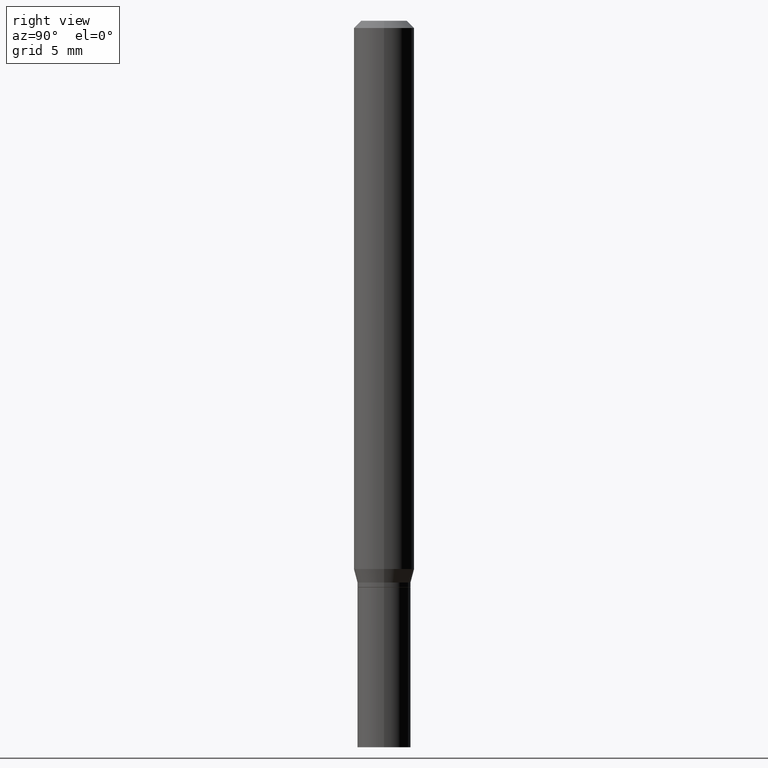
[diagram: clean part render]
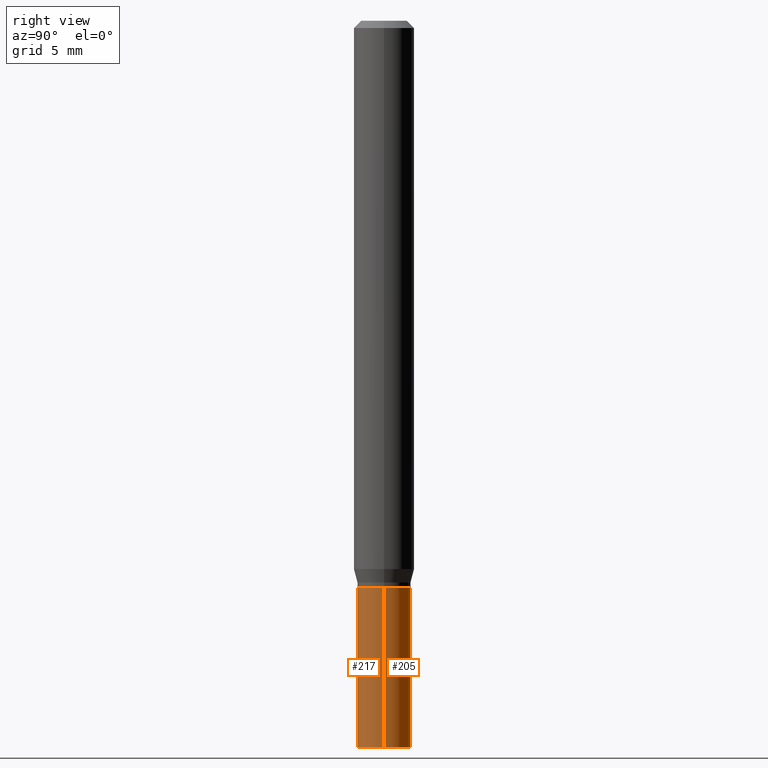
[diagram: same view with one multi-face feature highlighted, each face labeled with its STEP entity id]
A machine part, right view. The highlighted faces form ONE feature: a constant-radius fillet chain: 2 tangent blend faces with common blend radius 1.397 mm. The faces share edges in the B-rep.
Their STEP definitions:
[1] entity #205 (Cylinder):
#5 = VERTEX_POINT ( 'NONE', #393 ) ;
#20 = EDGE_CURVE ( 'NONE', #5, #462, #307, .T. ) ;
#26 = DIRECTION ( 'NONE',  ( -2.445468806185136877E-29, 3.491481338843145188E-15, 1.000000000000000000 ) ) ;
#45 = CARTESIAN_POINT ( 'NONE',  ( -0.05500000000000000028, -4.270329082687544462E-15, -1.500000000000000222 ) ) ;
#49 = DIRECTION ( 'NONE',  ( -2.445468806185136877E-29, 3.491481338843145188E-15, 1.000000000000000000 ) ) ;
#66 = VERTEX_POINT ( 'NONE', #254 ) ;
#83 = CYLINDRICAL_SURFACE ( 'NONE', #320, 0.05500000000000000028 ) ;
#114 = ORIENTED_EDGE ( 'NONE', *, *, #274, .T. ) ;
#120 = DIRECTION ( 'NONE',  ( 1.000000000000000000, -6.982962677686266711E-15, 4.876176775795935793E-29 ) ) ;
#145 = CARTESIAN_POINT ( 'NONE',  ( 2.861198503236610065E-29, -4.085033166446480067E-15, -1.170000000000000151 ) ) ;
#146 = AXIS2_PLACEMENT_3D ( 'NONE', #145, #437, #431 ) ;
#150 = CARTESIAN_POINT ( 'NONE',  ( 0.05500000000000000028, -3.840629472727446888E-16, 2.681897226687764826E-30 ) ) ;
#156 = DIRECTION ( 'NONE',  ( -2.445468806185136597E-29, 3.491481338843145583E-15, 1.000000000000000000 ) ) ;
#168 = EDGE_CURVE ( 'NONE', #66, #5, #302, .T. ) ;
#192 = CARTESIAN_POINT ( 'NONE',  ( 3.668203209277704895E-29, -5.237222008264718177E-15, -1.500000000000000222 ) ) ;
#199 = LINE ( 'NONE', #234, #383 ) ;
#205 = ADVANCED_FACE ( 'NONE', ( #224 ), #83, .T. ) ;
#224 = FACE_OUTER_BOUND ( 'NONE', #310, .T. ) ;
#234 = CARTESIAN_POINT ( 'NONE',  ( -0.05500000000000000028, 3.907985046680551042E-16, -2.705414299640198362E-30 ) ) ;
#244 = VERTEX_POINT ( 'NONE', #45 ) ;
#254 = CARTESIAN_POINT ( 'NONE',  ( 0.05500000000000000028, -5.621284955537463161E-15, -1.500000000000000222 ) ) ;
#269 = ORIENTED_EDGE ( 'NONE', *, *, #439, .T. ) ;
#274 = EDGE_CURVE ( 'NONE', #66, #244, #382, .T. ) ;
#281 = ORIENTED_EDGE ( 'NONE', *, *, #168, .F. ) ;
#302 = LINE ( 'NONE', #150, #428 ) ;
#307 = CIRCLE ( 'NONE', #146, 0.05500000000000000028 ) ;
#310 = EDGE_LOOP ( 'NONE', ( #114, #269, #409, #281 ) ) ;
#320 = AXIS2_PLACEMENT_3D ( 'NONE', #328, #368, #120 ) ;
#328 = CARTESIAN_POINT ( 'NONE',  ( 0.000000000000000000, 0.000000000000000000, 0.000000000000000000 ) ) ;
#331 = DIRECTION ( 'NONE',  ( 1.000000000000000000, -6.982962677686262766E-15, 0.000000000000000000 ) ) ;
#368 = DIRECTION ( 'NONE',  ( -2.445468806185136597E-29, 3.491481338843145583E-15, 1.000000000000000000 ) ) ;
#382 = CIRCLE ( 'NONE', #448, 0.05500000000000000028 ) ;
#383 = VECTOR ( 'NONE', #26, 39.37007874015748143 ) ;
#393 = CARTESIAN_POINT ( 'NONE',  ( 0.05500000000000000028, -4.469096113719225052E-15, -1.170000000000000151 ) ) ;
#409 = ORIENTED_EDGE ( 'NONE', *, *, #20, .F. ) ;
#412 = CARTESIAN_POINT ( 'NONE',  ( -0.05500000000000000028, -4.270329082687544462E-15, -1.170000000000000151 ) ) ;
#428 = VECTOR ( 'NONE', #49, 39.37007874015748143 ) ;
#431 = DIRECTION ( 'NONE',  ( 1.000000000000000000, -6.982962677686262766E-15, 0.000000000000000000 ) ) ;
#437 = DIRECTION ( 'NONE',  ( -2.445468806185136597E-29, 3.491481338843145583E-15, 1.000000000000000000 ) ) ;
#439 = EDGE_CURVE ( 'NONE', #244, #462, #199, .T. ) ;
#448 = AXIS2_PLACEMENT_3D ( 'NONE', #192, #156, #331 ) ;
#462 = VERTEX_POINT ( 'NONE', #412 ) ;
[2] entity #217 (Cylinder):
#5 = VERTEX_POINT ( 'NONE', #393 ) ;
#6 = FACE_OUTER_BOUND ( 'NONE', #103, .T. ) ;
#8 = DIRECTION ( 'NONE',  ( -2.445468806185136597E-29, 3.491481338843145583E-15, 1.000000000000000000 ) ) ;
#13 = AXIS2_PLACEMENT_3D ( 'NONE', #261, #8, #403 ) ;
#26 = DIRECTION ( 'NONE',  ( -2.445468806185136877E-29, 3.491481338843145188E-15, 1.000000000000000000 ) ) ;
#45 = CARTESIAN_POINT ( 'NONE',  ( -0.05500000000000000028, -4.270329082687544462E-15, -1.500000000000000222 ) ) ;
#49 = DIRECTION ( 'NONE',  ( -2.445468806185136877E-29, 3.491481338843145188E-15, 1.000000000000000000 ) ) ;
#66 = VERTEX_POINT ( 'NONE', #254 ) ;
#86 = CIRCLE ( 'NONE', #13, 0.05500000000000000028 ) ;
#99 = ORIENTED_EDGE ( 'NONE', *, *, #355, .T. ) ;
#103 = EDGE_LOOP ( 'NONE', ( #204, #99, #313, #388 ) ) ;
#115 = DIRECTION ( 'NONE',  ( 1.000000000000000000, -6.982962677686262766E-15, 0.000000000000000000 ) ) ;
#131 = CIRCLE ( 'NONE', #374, 0.05500000000000000028 ) ;
#150 = CARTESIAN_POINT ( 'NONE',  ( 0.05500000000000000028, -3.840629472727446888E-16, 2.681897226687764826E-30 ) ) ;
#157 = CYLINDRICAL_SURFACE ( 'NONE', #265, 0.05500000000000000028 ) ;
#168 = EDGE_CURVE ( 'NONE', #66, #5, #302, .T. ) ;
#191 = EDGE_CURVE ( 'NONE', #462, #5, #131, .T. ) ;
#199 = LINE ( 'NONE', #234, #383 ) ;
#204 = ORIENTED_EDGE ( 'NONE', *, *, #439, .F. ) ;
#217 = ADVANCED_FACE ( 'NONE', ( #6 ), #157, .T. ) ;
#225 = CARTESIAN_POINT ( 'NONE',  ( 2.861198503236610065E-29, -4.085033166446480067E-15, -1.170000000000000151 ) ) ;
#234 = CARTESIAN_POINT ( 'NONE',  ( -0.05500000000000000028, 3.907985046680551042E-16, -2.705414299640198362E-30 ) ) ;
#244 = VERTEX_POINT ( 'NONE', #45 ) ;
#254 = CARTESIAN_POINT ( 'NONE',  ( 0.05500000000000000028, -5.621284955537463161E-15, -1.500000000000000222 ) ) ;
#261 = CARTESIAN_POINT ( 'NONE',  ( 3.668203209277704895E-29, -5.237222008264718177E-15, -1.500000000000000222 ) ) ;
#264 = DIRECTION ( 'NONE',  ( -2.445468806185136597E-29, 3.491481338843145583E-15, 1.000000000000000000 ) ) ;
#265 = AXIS2_PLACEMENT_3D ( 'NONE', #295, #264, #267 ) ;
#267 = DIRECTION ( 'NONE',  ( 1.000000000000000000, -6.982962677686266711E-15, 4.876176775795935793E-29 ) ) ;
#295 = CARTESIAN_POINT ( 'NONE',  ( 0.000000000000000000, 0.000000000000000000, 0.000000000000000000 ) ) ;
#302 = LINE ( 'NONE', #150, #428 ) ;
#313 = ORIENTED_EDGE ( 'NONE', *, *, #168, .T. ) ;
#336 = DIRECTION ( 'NONE',  ( -2.445468806185136597E-29, 3.491481338843145583E-15, 1.000000000000000000 ) ) ;
#355 = EDGE_CURVE ( 'NONE', #244, #66, #86, .T. ) ;
#374 = AXIS2_PLACEMENT_3D ( 'NONE', #225, #336, #115 ) ;
#383 = VECTOR ( 'NONE', #26, 39.37007874015748143 ) ;
#388 = ORIENTED_EDGE ( 'NONE', *, *, #191, .F. ) ;
#393 = CARTESIAN_POINT ( 'NONE',  ( 0.05500000000000000028, -4.469096113719225052E-15, -1.170000000000000151 ) ) ;
#403 = DIRECTION ( 'NONE',  ( 1.000000000000000000, -6.982962677686262766E-15, 0.000000000000000000 ) ) ;
#412 = CARTESIAN_POINT ( 'NONE',  ( -0.05500000000000000028, -4.270329082687544462E-15, -1.170000000000000151 ) ) ;
#428 = VECTOR ( 'NONE', #49, 39.37007874015748143 ) ;
#439 = EDGE_CURVE ( 'NONE', #244, #462, #199, .T. ) ;
#462 = VERTEX_POINT ( 'NONE', #412 ) ;